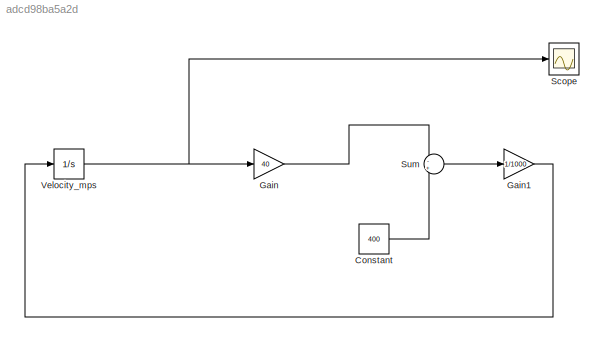
MODEL slx_adcd98ba5a2d
KIND model
CONFIG AbsTol = auto
CONFIG EnableMultiTasking = off
CONFIG FixedStep = auto
CONFIG MaxStep = auto
CONFIG MinStep = auto
CONFIG RelTol = 1e-3
CONFIG SampleTimeConstraint = Unconstrained
CONFIG SolverName = VariableStepAuto
CONFIG StartTime = 0.0
CONFIG StopTime = 10.0
BLOCK [Constant] Constant
  Value = 400
BLOCK [Gain] Gain
  Gain = 40
BLOCK [Gain] Gain1
  Gain = 1/1000
BLOCK [Scope] Scope
  ActiveDisplayYMaximum = 3.6097479691713263
  ActiveDisplayYMinimum = 0.73273760058397741
  Floating = off
  GraphicalSettings = {"AxesScalingProperties":{"AlignXAxis":"Center","AlignYAxis":"Center","AutoScaleXAxisLimits":false,"AxesScaling":"Manual","AxesScalingNumUpdates":10,"ExpandOnly":true,"ScaleAxesLimitsAtStop":false,"XAxisDataRange":100,"YAxisDataRange":80},"DisplayProperties":{"ColorOrder":["auto","auto","auto","auto","auto","auto","auto","auto","auto","auto","auto","auto","auto","auto","auto","auto","auto","auto",...<+2018ch>
  MultipleDisplayCache = [{"MaxYLimMag":3.7088994820990315,"MaxYLimReal":3.6097479691713263,"MinYLimMag":0,"MinYLimReal":0.73273760058397741,"PlotAsMagnitudePhase":false,"ShowGrid":true,"ShowLegend":false,"Title":"%<SignalLabel>","YLabel":""}]
  NumInputPorts = 1
  ScopeFrameLocation = window
  WasSavedAsWebScope = on
  WindowPosition = [1174.000000,254.000000,277.000000,286.000000,]
BLOCK [Sum] Sum
  Inputs = -+
BLOCK [Integrator] Velocity_mps
LINE Constant:1 -> Sum:2
LINE Gain1:1 -> Velocity_mps:1
LINE Gain:1 -> Sum:1
LINE Sum:1 -> Gain1:1
NET Velocity_mps:1 -> Gain:1, Scope:1
note: NET lines group one-source signal fan-out (src -> all destinations, sorted); 1:1 wires keep LINE
